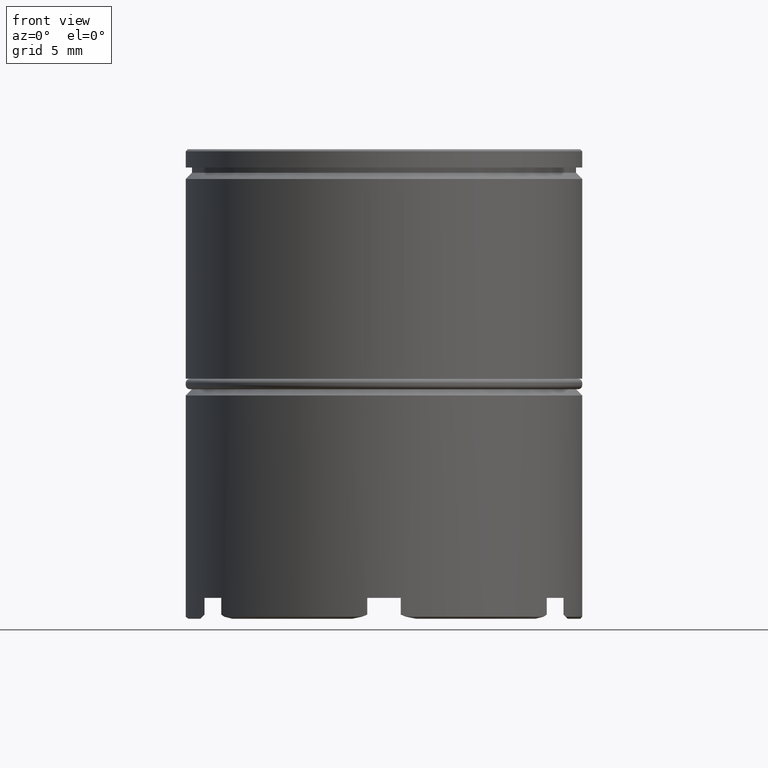
[diagram: clean part render]
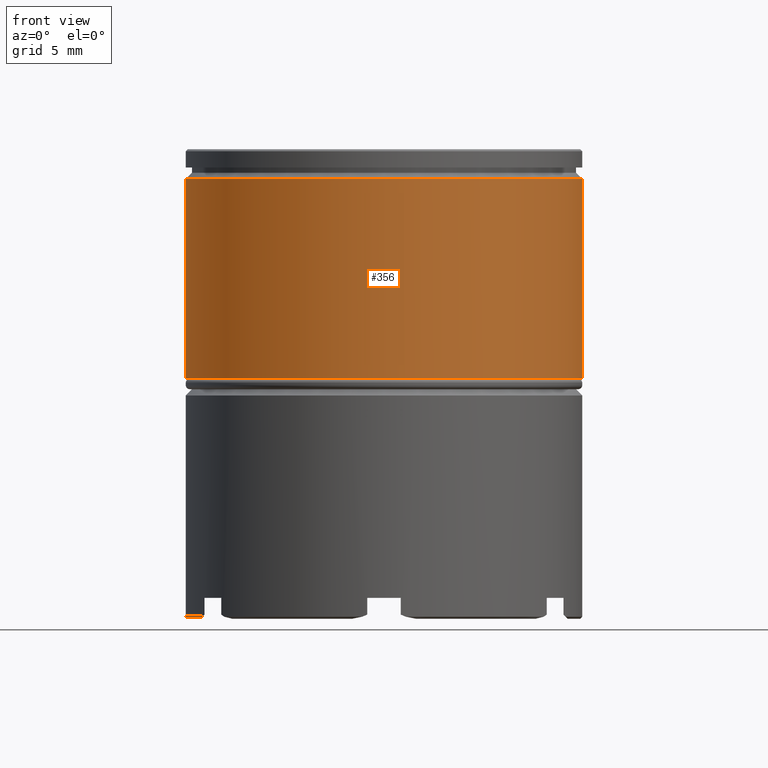
[diagram: same view with one face highlighted and labeled with its STEP entity id]
A machine part, front view. The second image highlights one B-rep face of the part: STEP entity #356.
In plain terms, the highlighted cylindrical surface (partial cylindrical patch) has radius 9.5 mm, axis along (-0, -0, 1).
Its self-contained STEP definition (entity closure, byte-faithful):
#23 = CARTESIAN_POINT ( 'NONE',  ( 0.000000000000000000, 0.000000000000000000, 0.000000000000000000 ) ) ;
#35 = DIRECTION ( 'NONE',  ( -0.000000000000000000, -0.000000000000000000, 1.000000000000000000 ) ) ;
#83 = DIRECTION ( 'NONE',  ( 0.000000000000000000, 0.000000000000000000, -1.000000000000000000 ) ) ;
#148 = EDGE_CURVE ( 'NONE', #1049, #1350, #1318, .T. ) ;
#154 = ORIENTED_EDGE ( 'NONE', *, *, #837, .T. ) ;
#166 = CIRCLE ( 'NONE', #1103, 9.500000000000000000 ) ;
#178 = ORIENTED_EDGE ( 'NONE', *, *, #1549, .T. ) ;
#189 = CARTESIAN_POINT ( 'NONE',  ( 9.500000000000000000, 0.000000000000000000, -1.425000000000003597 ) ) ;
#241 = VECTOR ( 'NONE', #35, 1000.000000000000000 ) ;
#279 = DIRECTION ( 'NONE',  ( -0.000000000000000000, -0.000000000000000000, 1.000000000000000000 ) ) ;
#282 = CARTESIAN_POINT ( 'NONE',  ( 9.500000000000000000, 0.000000000000000000, 0.000000000000000000 ) ) ;
#356 = ADVANCED_FACE ( 'NONE', ( #513 ), #885, .T. ) ;
#387 = DIRECTION ( 'NONE',  ( -0.000000000000000000, -0.000000000000000000, 1.000000000000000000 ) ) ;
#398 = CARTESIAN_POINT ( 'NONE',  ( 0.000000000000000000, 0.000000000000000000, -11.00000000000000000 ) ) ;
#513 = FACE_OUTER_BOUND ( 'NONE', #1304, .T. ) ;
#548 = CARTESIAN_POINT ( 'NONE',  ( -9.500000000000000000, 1.163414459189985485E-15, 0.000000000000000000 ) ) ;
#672 = CIRCLE ( 'NONE', #1393, 9.500000000000000000 ) ;
#706 = CARTESIAN_POINT ( 'NONE',  ( -9.500000000000000000, 1.163414459189985485E-15, -1.425000000000003597 ) ) ;
#753 = VERTEX_POINT ( 'NONE', #1151 ) ;
#797 = ORIENTED_EDGE ( 'NONE', *, *, #1444, .T. ) ;
#811 = DIRECTION ( 'NONE',  ( -0.000000000000000000, -0.000000000000000000, 1.000000000000000000 ) ) ;
#837 = EDGE_CURVE ( 'NONE', #753, #1616, #1582, .T. ) ;
#885 = CYLINDRICAL_SURFACE ( 'NONE', #1439, 9.500000000000000000 ) ;
#919 = DIRECTION ( 'NONE',  ( 1.000000000000000000, 0.000000000000000000, 0.000000000000000000 ) ) ;
#1019 = ORIENTED_EDGE ( 'NONE', *, *, #148, .F. ) ;
#1049 = VERTEX_POINT ( 'NONE', #1270 ) ;
#1103 = AXIS2_PLACEMENT_3D ( 'NONE', #1604, #83, #1108 ) ;
#1108 = DIRECTION ( 'NONE',  ( 1.000000000000000000, 0.000000000000000000, 0.000000000000000000 ) ) ;
#1133 = DIRECTION ( 'NONE',  ( 1.000000000000000000, 0.000000000000000000, 0.000000000000000000 ) ) ;
#1151 = CARTESIAN_POINT ( 'NONE',  ( 9.500000000000000000, 0.000000000000000000, -11.00000000000000000 ) ) ;
#1155 = VECTOR ( 'NONE', #811, 1000.000000000000000 ) ;
#1270 = CARTESIAN_POINT ( 'NONE',  ( -9.500000000000000000, 1.163414459189985485E-15, -11.00000000000000000 ) ) ;
#1304 = EDGE_LOOP ( 'NONE', ( #1019, #178, #154, #797 ) ) ;
#1318 = LINE ( 'NONE', #548, #241 ) ;
#1350 = VERTEX_POINT ( 'NONE', #706 ) ;
#1393 = AXIS2_PLACEMENT_3D ( 'NONE', #398, #387, #919 ) ;
#1439 = AXIS2_PLACEMENT_3D ( 'NONE', #23, #279, #1133 ) ;
#1444 = EDGE_CURVE ( 'NONE', #1616, #1350, #166, .T. ) ;
#1549 = EDGE_CURVE ( 'NONE', #1049, #753, #672, .T. ) ;
#1582 = LINE ( 'NONE', #282, #1155 ) ;
#1604 = CARTESIAN_POINT ( 'NONE',  ( 0.000000000000000000, 0.000000000000000000, -1.425000000000003597 ) ) ;
#1616 = VERTEX_POINT ( 'NONE', #189 ) ;